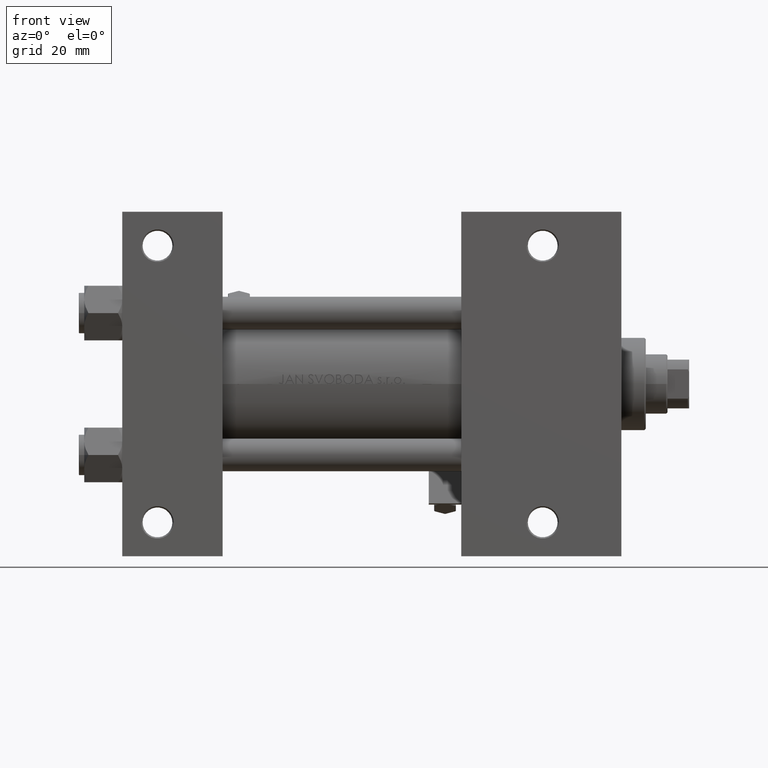
[diagram: clean part render]
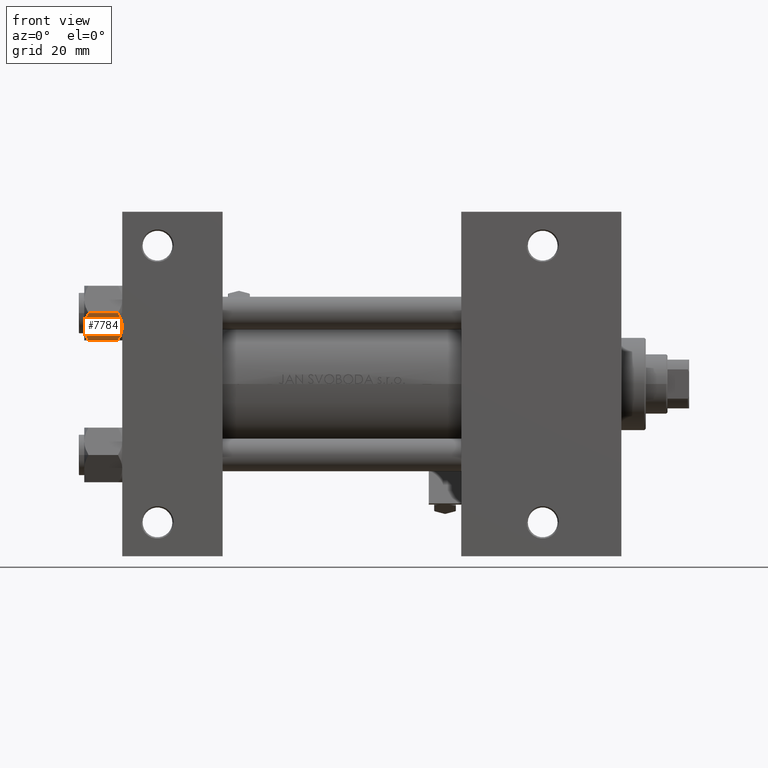
[diagram: same view with one face highlighted and labeled with its STEP entity id]
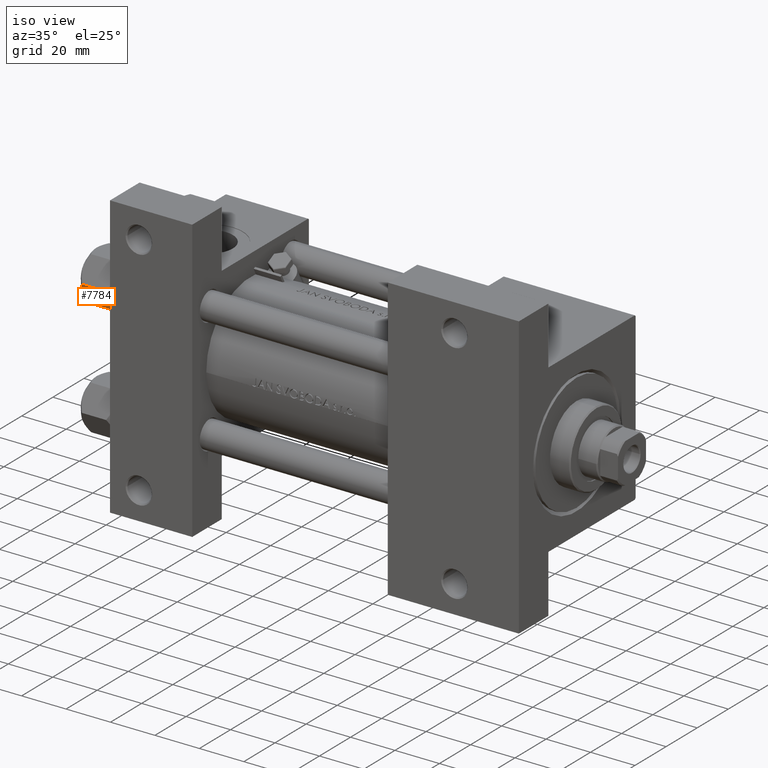
[diagram: same view with one face highlighted and labeled with its STEP entity id]
A machine part, front view. The second image highlights one B-rep face of the part: STEP entity #7784.
A second angle (iso view) of the same face is appended — the face is thin or edge-on in the first view.
In plain terms, the highlighted planar face has unit normal (0, 0.866, 0.5).
Its self-contained STEP definition (entity closure, byte-faithful):
#190 = VERTEX_POINT ( 'NONE', #628 ) ;
#628 = CARTESIAN_POINT ( 'NONE',  ( -11.61999999999999922, 6.301834029662224111E-15, -1.556784808024812117 ) ) ;
#915 = CARTESIAN_POINT ( 'NONE',  ( -9.220295946303428636, 4.156409344131454020, 2.043043468777371629E-15 ) ) ;
#2481 = FACE_OUTER_BOUND ( 'NONE', #20253, .T. ) ;
#4276 = ORIENTED_EDGE ( 'NONE', *, *, #41033, .F. ) ;
#4447 = EDGE_CURVE ( 'NONE', #34282, #190, #37489, .T. ) ;
#5315 = CARTESIAN_POINT ( 'NONE',  ( -9.729165168613649328, 3.275021996682086822, -13.80960203119265906 ) ) ;
#5793 = CARTESIAN_POINT ( 'NONE',  ( -9.974696630283190757, 2.849749030213795109, -13.69973261901325934 ) ) ;
#5919 = DIRECTION ( 'NONE',  ( 0.5000000000000001110, 0.8660254037844384856, 0.000000000000000000 ) ) ;
#7261 = CARTESIAN_POINT ( 'NONE',  ( -8.715000000000001634, 5.031607595987591885, -14.00000000000000000 ) ) ;
#7784 = ADVANCED_FACE ( 'NONE', ( #2481 ), #28057, .F. ) ;
#8107 = CARTESIAN_POINT ( 'NONE',  ( -8.715000000000001634, 5.031607595987591885, 0.000000000000000000 ) ) ;
#8140 = VERTEX_POINT ( 'NONE', #46922 ) ;
#8352 = CARTESIAN_POINT ( 'NONE',  ( -5.809999999999997833, 10.06321519197518022, -1.556784808024815447 ) ) ;
#8668 = EDGE_CURVE ( 'NONE', #40288, #8140, #31347, .T. ) ;
#9384 = CARTESIAN_POINT ( 'NONE',  ( -11.61999999999999922, 6.288644352490894150E-15, -14.00000000000000000 ) ) ;
#11697 = B_SPLINE_CURVE_WITH_KNOTS ( 'NONE', 3,
 ( #15416, #26711, #46848, #5793, #5315, #20556, #23995, #46131 ),
 .UNSPECIFIED., .F., .F.,
 ( 4, 2, 2, 4 ),
 ( 2.544312114905218436E-07, 0.003011550106433537755, 0.004517197944044560980, 0.006022845781655582903 ),
 .UNSPECIFIED. ) ;
#11989 = CARTESIAN_POINT ( 'NONE',  ( -8.715000000000001634, 5.031607595987591885, 0.000000000000000000 ) ) ;
#15279 = EDGE_CURVE ( 'NONE', #42806, #40288, #11697, .T. ) ;
#15416 = CARTESIAN_POINT ( 'NONE',  ( -11.61999999999999922, 6.270720075510426383E-15, -12.44321519197518811 ) ) ;
#15586 = LINE ( 'NONE', #30561, #24791 ) ;
#16084 = CARTESIAN_POINT ( 'NONE',  ( -11.61999999999999922, 6.270720075510426383E-15, -12.44321519197518811 ) ) ;
#16168 = CARTESIAN_POINT ( 'NONE',  ( -11.16498164529022041, 0.7881149087337345760, -1.101766453314951821 ) ) ;
#17423 = ORIENTED_EDGE ( 'NONE', *, *, #25994, .T. ) ;
#18099 = ORIENTED_EDGE ( 'NONE', *, *, #15279, .F. ) ;
#18578 = ORIENTED_EDGE ( 'NONE', *, *, #4447, .F. ) ;
#19911 = CARTESIAN_POINT ( 'NONE',  ( -8.715000000000001634, 5.031607595987591885, -14.00000000000000000 ) ) ;
#19913 = CARTESIAN_POINT ( 'NONE',  ( -7.455303369716805406, 7.213466161761384221, -0.3002673809867381083 ) ) ;
#20068 = EDGE_CURVE ( 'NONE', #43695, #34282, #29516, .T. ) ;
#20253 = EDGE_LOOP ( 'NONE', ( #18099, #17423, #18578, #47591, #4276, #40711 ) ) ;
#20477 = VECTOR ( 'NONE', #37013, 1000.000000000000000 ) ;
#20556 = CARTESIAN_POINT ( 'NONE',  ( -9.227666995912096937, 4.143642311704127223, -13.96005881939308857 ) ) ;
#21012 = AXIS2_PLACEMENT_3D ( 'NONE', #9384, #46491, #5919 ) ;
#22878 = CARTESIAN_POINT ( 'NONE',  ( -8.715000000000001634, 5.031607595987591885, 0.000000000000000000 ) ) ;
#23995 = CARTESIAN_POINT ( 'NONE',  ( -8.969430103550378064, 4.590921729663314466, -14.00000000000000178 ) ) ;
#24071 = CARTESIAN_POINT ( 'NONE',  ( -6.731401448974986934, 8.467301068182916168, -0.7141438259524663934 ) ) ;
#24791 = VECTOR ( 'NONE', #37696, 1000.000000000000000 ) ;
#25994 = EDGE_CURVE ( 'NONE', #42806, #190, #15586, .T. ) ;
#26711 = CARTESIAN_POINT ( 'NONE',  ( -11.16445427487471598, 0.7890283410878030645, -12.89876091710047312 ) ) ;
#26790 = CARTESIAN_POINT ( 'NONE',  ( -7.713000053756302599, 6.767122412062954062, -13.84547602999601601 ) ) ;
#26973 = CARTESIAN_POINT ( 'NONE',  ( -9.716999946243698005, 3.296092779912228377, -0.1545239700039844066 ) ) ;
#27279 = CARTESIAN_POINT ( 'NONE',  ( -5.809999999999997833, 10.06321519197518022, -12.44321519197518455 ) ) ;
#27756 = CARTESIAN_POINT ( 'NONE',  ( -6.265545725125282850, 9.274186850887385702, -1.101239082899535537 ) ) ;
#28057 = PLANE ( 'NONE',  #21012 ) ;
#29516 = B_SPLINE_CURVE_WITH_KNOTS ( 'NONE', 3,
 ( #8352, #27756, #24071, #19913, #41784, #34410, #38342, #8107 ),
 .UNSPECIFIED., .F., .F.,
 ( 4, 2, 2, 4 ),
 ( 2.544312114902182352E-07, 0.003011550106433540791, 0.004517197944044565316, 0.006022845781655589842 ),
 .UNSPECIFIED. ) ;
#30561 = CARTESIAN_POINT ( 'NONE',  ( -11.61999999999999922, 6.288644352490894150E-15, -14.00000000000000000 ) ) ;
#31347 = B_SPLINE_CURVE_WITH_KNOTS ( 'NONE', 3,
 ( #19911, #38090, #26790, #37616, #45962, #27279 ),
 .UNSPECIFIED., .F., .F.,
 ( 4, 2, 4 ),
 ( 0.006022845781655582903, 0.009013049135303629819, 0.01200325248895167847 ),
 .UNSPECIFIED. ) ;
#34282 = VERTEX_POINT ( 'NONE', #22878 ) ;
#34410 = CARTESIAN_POINT ( 'NONE',  ( -8.202333004087897450, 5.919572880271055659, -0.03994118060690795419 ) ) ;
#36776 = LINE ( 'NONE', #44633, #20477 ) ;
#37013 = DIRECTION ( 'NONE',  ( -0.000000000000000000, -0.000000000000000000, 1.000000000000000000 ) ) ;
#37489 = B_SPLINE_CURVE_WITH_KNOTS ( 'NONE', 3,
 ( #11989, #915, #26973, #45903, #16168, #43911 ),
 .UNSPECIFIED., .F., .F.,
 ( 4, 2, 4 ),
 ( 0.006022845781655589842, 0.009013049135303635023, 0.01200325248895167847 ),
 .UNSPECIFIED. ) ;
#37616 = CARTESIAN_POINT ( 'NONE',  ( -6.733375043383492020, 8.463882702393842550, -13.28854452935654962 ) ) ;
#37696 = DIRECTION ( 'NONE',  ( -0.000000000000000000, -0.000000000000000000, 1.000000000000000000 ) ) ;
#38090 = CARTESIAN_POINT ( 'NONE',  ( -8.209704053696567527, 5.906805847843725310, -14.00000000000000533 ) ) ;
#38260 = CARTESIAN_POINT ( 'NONE',  ( -5.809999999999997833, 10.06321519197518022, -1.556784808024815447 ) ) ;
#38342 = CARTESIAN_POINT ( 'NONE',  ( -8.460569896449618099, 5.472293462311865753, 2.204732646931026331E-15 ) ) ;
#40288 = VERTEX_POINT ( 'NONE', #7261 ) ;
#40711 = ORIENTED_EDGE ( 'NONE', *, *, #8668, .F. ) ;
#41033 = EDGE_CURVE ( 'NONE', #8140, #43695, #36776, .T. ) ;
#41784 = CARTESIAN_POINT ( 'NONE',  ( -7.700834831386344170, 6.788193195293096949, -0.1903979688073418330 ) ) ;
#42806 = VERTEX_POINT ( 'NONE', #16084 ) ;
#43695 = VERTEX_POINT ( 'NONE', #38260 ) ;
#43911 = CARTESIAN_POINT ( 'NONE',  ( -11.61999999999999922, 6.301834029662224111E-15, -1.556784808024812117 ) ) ;
#44633 = CARTESIAN_POINT ( 'NONE',  ( -5.809999999999997833, 10.06321519197518022, -14.00000000000000000 ) ) ;
#45903 = CARTESIAN_POINT ( 'NONE',  ( -10.69662495661650325, 1.599332489581336780, -0.7114554706434498277 ) ) ;
#45962 = CARTESIAN_POINT ( 'NONE',  ( -6.265018354709776638, 9.275100283241455301, -12.89823354668505218 ) ) ;
#46131 = CARTESIAN_POINT ( 'NONE',  ( -8.715000000000001634, 5.031607595987591885, -14.00000000000000000 ) ) ;
#46491 = DIRECTION ( 'NONE',  ( 0.8660254037844385966, -0.5000000000000002220, 0.000000000000000000 ) ) ;
#46848 = CARTESIAN_POINT ( 'NONE',  ( -10.69859855102501101, 1.595914123792268491, -13.28585617404753627 ) ) ;
#46922 = CARTESIAN_POINT ( 'NONE',  ( -5.809999999999997833, 10.06321519197518022, -12.44321519197518455 ) ) ;
#47591 = ORIENTED_EDGE ( 'NONE', *, *, #20068, .F. ) ;